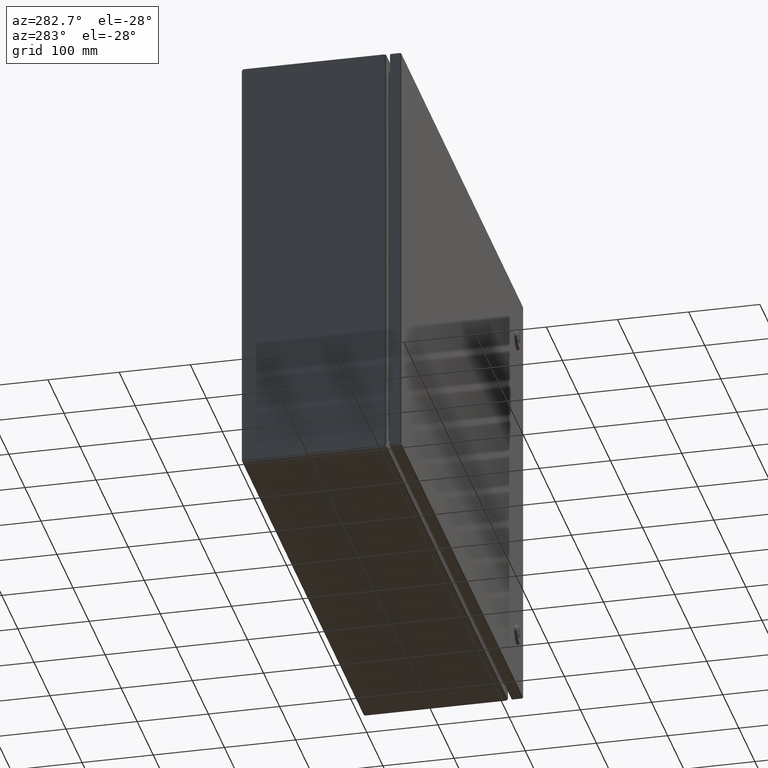
[diagram: clean part render]
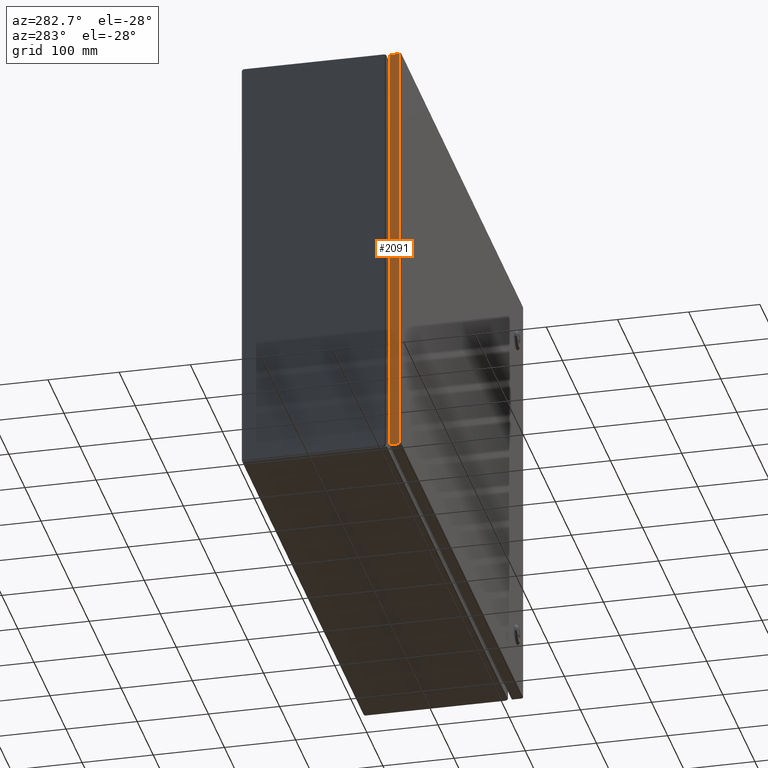
[diagram: same view with one face highlighted and labeled with its STEP entity id]
A machine part, auxiliary view. The second image highlights one B-rep face of the part: STEP entity #2091.
In plain terms, the highlighted planar face has unit normal (-1, 0, 0).
Its self-contained STEP definition (entity closure, byte-faithful):
#512 = VECTOR ( 'NONE', #9680, 39.37007874015748143 ) ;
#1487 = DIRECTION ( 'NONE',  ( -6.123031769111889989E-17, -1.000000000000000000, 0.0000000000000000000 ) ) ;
#2091 = ADVANCED_FACE ( 'NONE', ( #3345 ), #3735, .T. ) ;
#2627 = LINE ( 'NONE', #12811, #10389 ) ;
#3089 = CARTESIAN_POINT ( 'NONE',  ( -14.99600000000000932, -8.728999999999990322, 11.91192125984251682 ) ) ;
#3345 = FACE_OUTER_BOUND ( 'NONE', #8568, .T. ) ;
#3735 = PLANE ( 'NONE',  #11494 ) ;
#4606 = CARTESIAN_POINT ( 'NONE',  ( -14.99600000000000932, -8.212000000000001521, -11.91292125984252337 ) ) ;
#5468 = VECTOR ( 'NONE', #17958, 39.37007874015748143 ) ;
#8568 = EDGE_LOOP ( 'NONE', ( #11414, #13552, #15881, #17127 ) ) ;
#8953 = EDGE_CURVE ( 'NONE', #23857, #26174, #14229, .T. ) ;
#9282 = LINE ( 'NONE', #11784, #512 ) ;
#9680 = DIRECTION ( 'NONE',  ( 0.0000000000000000000, -0.0000000000000000000, -1.000000000000000000 ) ) ;
#10309 = DIRECTION ( 'NONE',  ( -0.0000000000000000000, -6.123031769111889989E-17, -1.000000000000000000 ) ) ;
#10389 = VECTOR ( 'NONE', #10309, 39.37007874015748143 ) ;
#11414 = ORIENTED_EDGE ( 'NONE', *, *, #16743, .F. ) ;
#11494 = AXIS2_PLACEMENT_3D ( 'NONE', #11803, #21359, #1487 ) ;
#11784 = CARTESIAN_POINT ( 'NONE',  ( -14.99600000000000932, -8.212000000000001521, 11.87599999999999767 ) ) ;
#11803 = CARTESIAN_POINT ( 'NONE',  ( -14.99600000000000932, -8.774500000000001521, -11.87700000000000422 ) ) ;
#12236 = VERTEX_POINT ( 'NONE', #12587 ) ;
#12413 = EDGE_CURVE ( 'NONE', #26174, #16726, #9282, .T. ) ;
#12549 = CARTESIAN_POINT ( 'NONE',  ( -14.99600000000000932, -8.212000000000001521, -11.91292125984252337 ) ) ;
#12587 = CARTESIAN_POINT ( 'NONE',  ( -14.99600000000000932, -8.728999999999995651, -11.91292125984252337 ) ) ;
#12811 = CARTESIAN_POINT ( 'NONE',  ( -14.99600000000000932, -8.728999999999993875, -11.87700000000000422 ) ) ;
#13552 = ORIENTED_EDGE ( 'NONE', *, *, #8953, .T. ) ;
#13989 = CARTESIAN_POINT ( 'NONE',  ( -14.99600000000000932, -8.212000000000001521, 11.91192125984251682 ) ) ;
#14229 = LINE ( 'NONE', #20318, #5468 ) ;
#15881 = ORIENTED_EDGE ( 'NONE', *, *, #12413, .T. ) ;
#16726 = VERTEX_POINT ( 'NONE', #12549 ) ;
#16743 = EDGE_CURVE ( 'NONE', #23857, #12236, #2627, .T. ) ;
#16838 = EDGE_CURVE ( 'NONE', #16726, #12236, #24740, .T. ) ;
#17127 = ORIENTED_EDGE ( 'NONE', *, *, #16838, .T. ) ;
#17958 = DIRECTION ( 'NONE',  ( 0.0000000000000000000, 1.000000000000000000, 0.0000000000000000000 ) ) ;
#20318 = CARTESIAN_POINT ( 'NONE',  ( -14.99600000000000932, -8.774500000000001521, 11.91192125984251682 ) ) ;
#20902 = DIRECTION ( 'NONE',  ( 0.0000000000000000000, -1.000000000000000000, -0.0000000000000000000 ) ) ;
#21359 = DIRECTION ( 'NONE',  ( -1.000000000000000000, 6.123031769111889989E-17, 0.0000000000000000000 ) ) ;
#23857 = VERTEX_POINT ( 'NONE', #3089 ) ;
#24740 = LINE ( 'NONE', #4606, #26055 ) ;
#26055 = VECTOR ( 'NONE', #20902, 39.37007874015748143 ) ;
#26174 = VERTEX_POINT ( 'NONE', #13989 ) ;